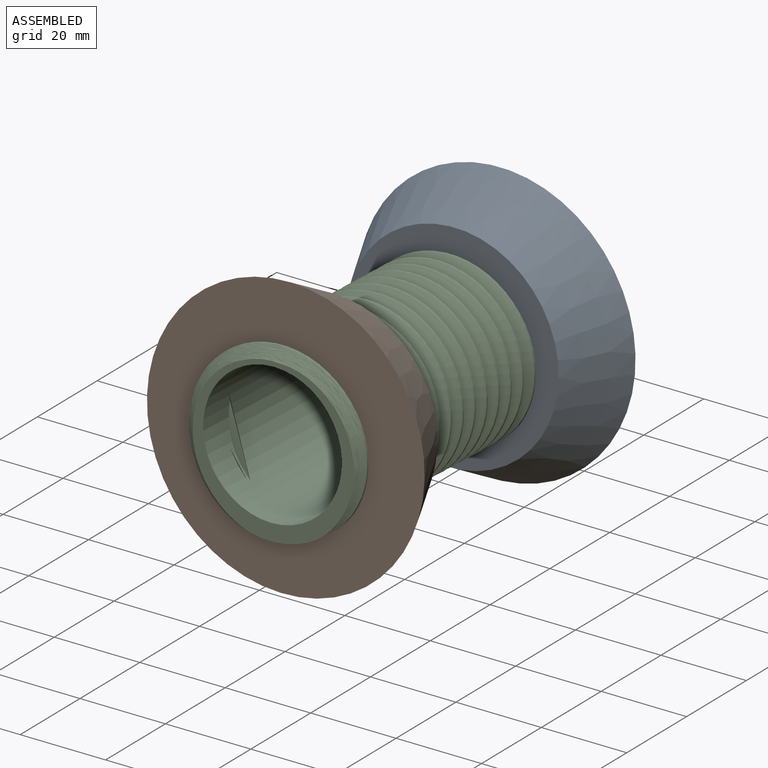
[diagram: assembled view]
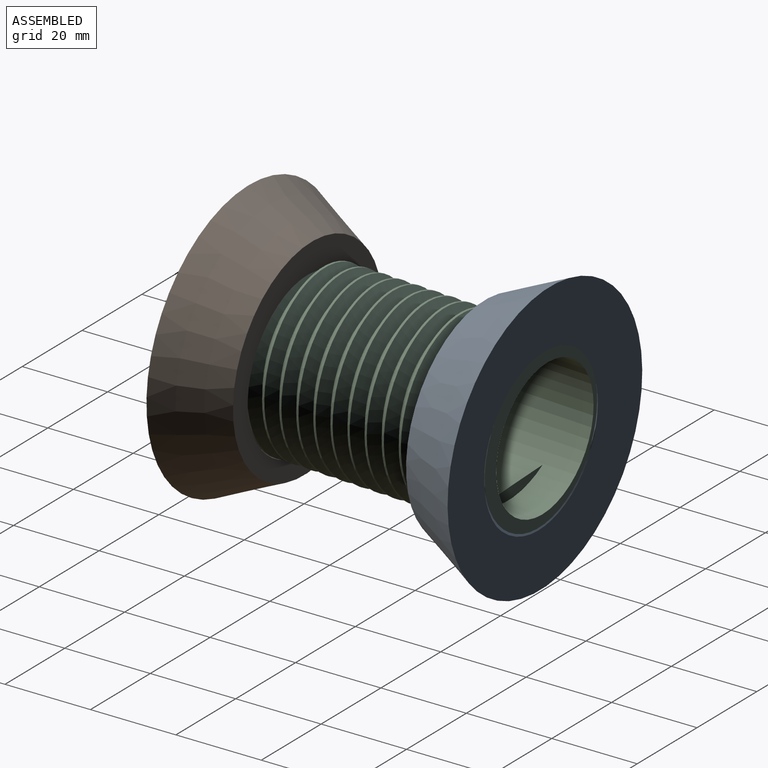
[diagram: assembled view, second angle]
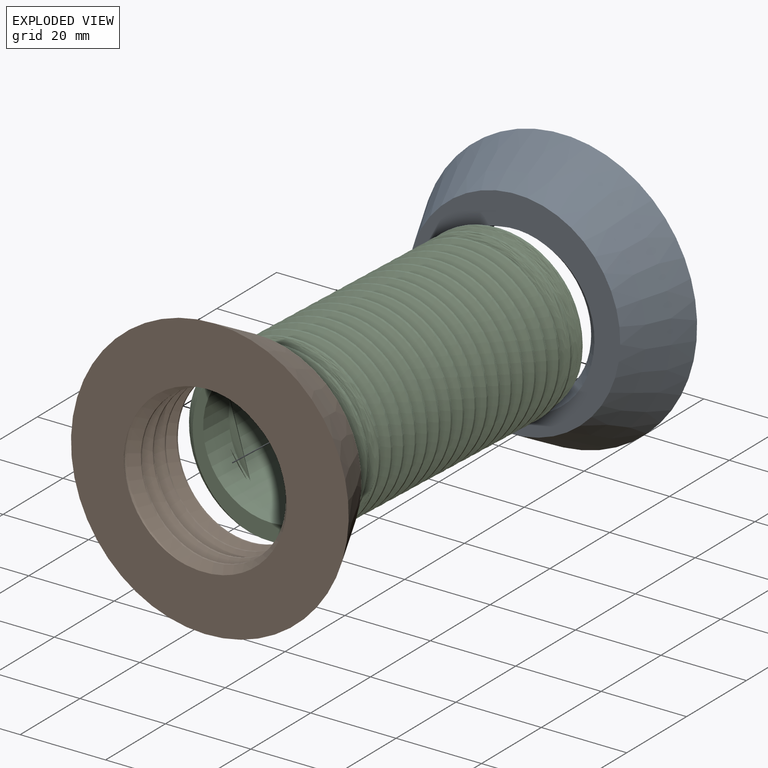
[diagram: exploded view]
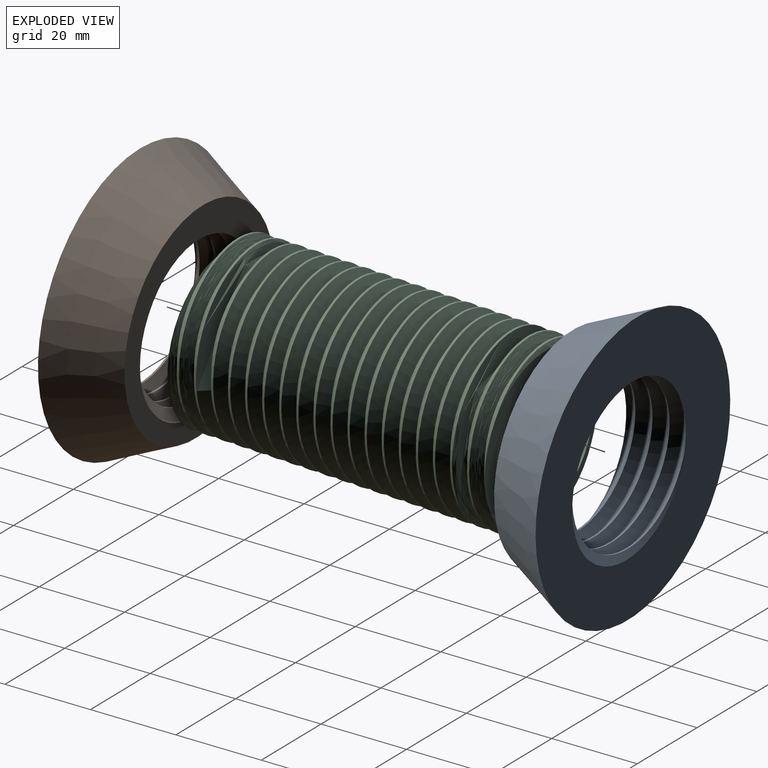
[diagram: exploded view, second angle]
ASSEMBLY  parts=3 mates=2
PART A: 7 faces, bbox 66.4x20.1x66.4 mm
  f0: plane 66.25x66.25mm, normal (0,-1,0), area 2177.5mm2, adj f1,f3,f4,f5,f6
  f1: cone r=32.5mm half-angle=26.6deg, axis (0,-1,0), area 3029.5mm2, adj f0,f2
  f2: plane 51.44x51.44mm, normal (0,1,0), area 822.7mm2, adj f1,f3,f4,f5,f6
  f3: cylinder r=17.68mm len=35.37mm, axis (0,1,0), area 160.9mm2, adj f0,f2,f4,f6
  f4: bspline ~46.2x40.01mm, area 1189mm2, adj f0,f2,f3,f5
  f5: bspline ~47.12x40.8mm, area 523.6mm2, adj f0,f2,f4,f6
  f6: bspline ~46.2x40.01mm, area 1192.6mm2, adj f0,f2,f3,f5
PART B: 7 faces, bbox 66.4x20.1x66.4 mm
  f0: plane 66.26x66.26mm, normal (0,1,0), area 2177.6mm2, adj f1,f3,f4,f5,f6
  f1: cone r=32.5mm half-angle=26.6deg, axis (0,1,0), area 3029.5mm2, adj f0,f2
  f2: plane 51.43x51.43mm, normal (0,-1,0), area 822.7mm2, adj f1,f3,f4,f5,f6
  f3: cylinder r=17.68mm len=35.37mm, axis (0,1,0), area 163mm2, adj f0,f2,f4,f6
  f4: bspline ~46.2x40.01mm, area 1191.4mm2, adj f0,f2,f3,f5
  f5: bspline ~47.12x40.8mm, area 523.5mm2, adj f0,f2,f4,f6
  f6: bspline ~46.2x40.01mm, area 1189.8mm2, adj f0,f2,f3,f5
PART C: 7 faces, bbox 46.5x79x40.3 mm
  f0: cylinder r=17.38mm len=75mm, axis (0,-1,0), area 1851.1mm2, adj f2,f3,f5,f6
  f1: cylinder r=20.13mm len=75mm, axis (0,1,0), area 1672.3mm2, adj f2,f3,f5,f6
  f2: bspline ~78.92x46.49mm, area 7036.4mm2, adj f0,f1,f5,f6
  f3: bspline ~78.92x46.49mm, area 7018mm2, adj f0,f1,f5,f6
  f4: cylinder r=16.25mm len=75mm, axis (0,1,0), area 7657.6mm2, adj f5,f6
  f5: plane 37.75x37.54mm, normal (0,-1,0), area 286.8mm2, adj f0,f1,f2,f3,f4
  f6: plane 37.77x37.54mm, normal (0,1,0), area 286.8mm2, adj f0,f1,f2,f3,f4
PLACE A rot(axis=(0.73,0.01,0.68),178.4deg) t=(50.78,68.95,56.54)mm
PLACE B rot(axis=(0.45,0.02,0.89),179deg) t=(50.78,28.43,58.05)mm
PLACE C rot(axis=(-0.02,-1,0.02),86.2deg) t=(50.78,-58.66,61.31)mm
MATE cylindrical C.f4 <-> B.f1  axis (0,1,-0.04) through (50.78,8.99,58.78)mm
MATE cylindrical C.f4 <-> A.f1  axis (0,1,-0.04) through (50.78,83.94,55.98)mm
